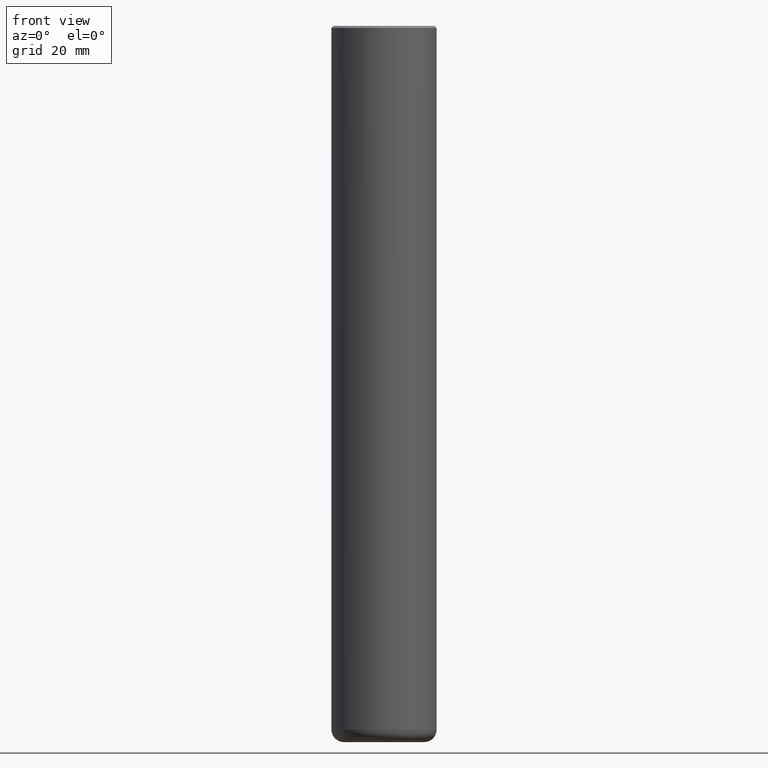
[diagram: clean part render]
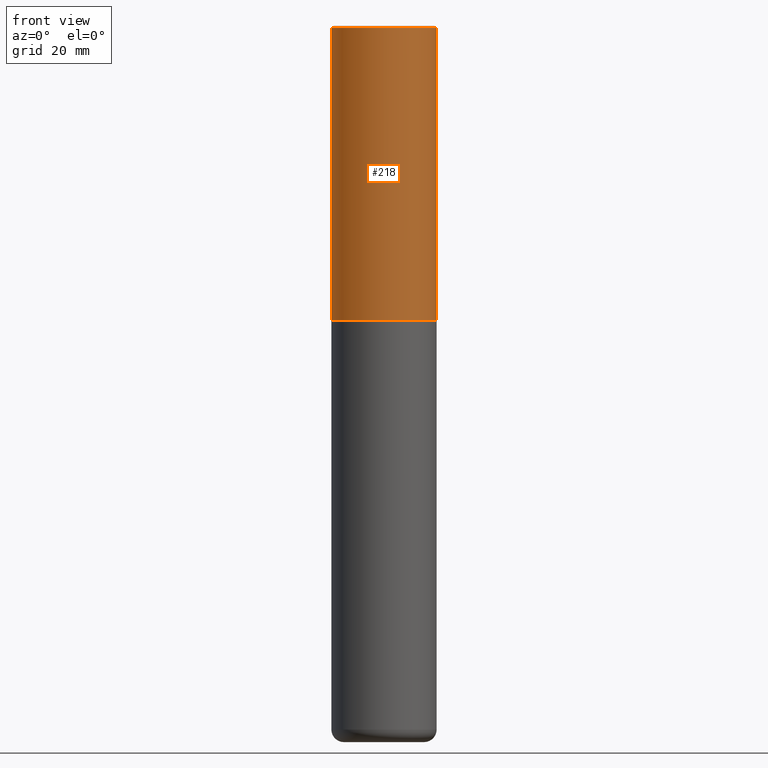
[diagram: same view with one face highlighted and labeled with its STEP entity id]
A machine part, front view. The second image highlights one B-rep face of the part: STEP entity #218.
In plain terms, the highlighted cylindrical surface (partial cylindrical patch) has radius 12.5006 mm, axis along (-0, 0, 1).
Its self-contained STEP definition (entity closure, byte-faithful):
#1 = EDGE_CURVE ( 'NONE', #210, #290, #328, .T. ) ;
#4 = CIRCLE ( 'NONE', #348, 0.4921500000000000319 ) ;
#5 = DIRECTION ( 'NONE',  ( -2.445468806185136877E-29, 3.491481338843145188E-15, 1.000000000000000000 ) ) ;
#36 = CARTESIAN_POINT ( 'NONE',  ( 0.4921500000000003094, -1.305534702220228032E-14, -2.754900000000000126 ) ) ;
#37 = DIRECTION ( 'NONE',  ( -2.445468806185136597E-29, 3.491481338843145583E-15, 1.000000000000000000 ) ) ;
#39 = DIRECTION ( 'NONE',  ( -2.445468806185136877E-29, 3.491481338843145188E-15, 1.000000000000000000 ) ) ;
#40 = CARTESIAN_POINT ( 'NONE',  ( 0.4921500000000000319, -3.446223716380123138E-15, -0.02000000000000010797 ) ) ;
#43 = DIRECTION ( 'NONE',  ( 1.000000000000000000, -6.982962677686265922E-15, 0.000000000000000000 ) ) ;
#49 = CARTESIAN_POINT ( 'NONE',  ( -0.4921500000000000319, 3.366835455046432873E-15, -0.02000000000000010797 ) ) ;
#64 = LINE ( 'NONE', #325, #248 ) ;
#65 = EDGE_CURVE ( 'NONE', #116, #342, #64, .T. ) ;
#116 = VERTEX_POINT ( 'NONE', #36 ) ;
#120 = CARTESIAN_POINT ( 'NONE',  ( -0.4921500000000003094, -1.347319709534586880E-15, -2.754900000000000126 ) ) ;
#146 = CARTESIAN_POINT ( 'NONE',  ( 6.737022014159432629E-29, -9.618681940378981383E-15, -2.754900000000000126 ) ) ;
#158 = AXIS2_PLACEMENT_3D ( 'NONE', #146, #37, #393 ) ;
#181 = ORIENTED_EDGE ( 'NONE', *, *, #1, .F. ) ;
#195 = CARTESIAN_POINT ( 'NONE',  ( -0.4921500000000001984, 3.496936074043334475E-15, -2.420853904668952630E-29 ) ) ;
#210 = VERTEX_POINT ( 'NONE', #120 ) ;
#214 = DIRECTION ( 'NONE',  ( -2.445468806185136597E-29, 3.491481338843145583E-15, 1.000000000000000000 ) ) ;
#216 = FACE_OUTER_BOUND ( 'NONE', #254, .T. ) ;
#218 = ADVANCED_FACE ( 'NONE', ( #216 ), #282, .T. ) ;
#233 = VECTOR ( 'NONE', #39, 39.37007874015748143 ) ;
#246 = DIRECTION ( 'NONE',  ( 1.000000000000000000, -6.982962677686266711E-15, 4.876176775795935232E-29 ) ) ;
#248 = VECTOR ( 'NONE', #5, 39.37007874015748143 ) ;
#254 = EDGE_LOOP ( 'NONE', ( #181, #316, #345, #413 ) ) ;
#270 = CARTESIAN_POINT ( 'NONE',  ( 4.890937612370299433E-31, -6.982962677686328587E-17, -0.02000000000000010797 ) ) ;
#282 = CYLINDRICAL_SURFACE ( 'NONE', #289, 0.4921500000000001984 ) ;
#289 = AXIS2_PLACEMENT_3D ( 'NONE', #368, #214, #246 ) ;
#290 = VERTEX_POINT ( 'NONE', #49 ) ;
#316 = ORIENTED_EDGE ( 'NONE', *, *, #322, .T. ) ;
#319 = CIRCLE ( 'NONE', #158, 0.4921500000000003094 ) ;
#322 = EDGE_CURVE ( 'NONE', #210, #116, #319, .T. ) ;
#325 = CARTESIAN_POINT ( 'NONE',  ( 0.4921500000000001984, -3.436665081823297354E-15, 2.399810400207970443E-29 ) ) ;
#328 = LINE ( 'NONE', #195, #233 ) ;
#342 = VERTEX_POINT ( 'NONE', #40 ) ;
#345 = ORIENTED_EDGE ( 'NONE', *, *, #65, .T. ) ;
#348 = AXIS2_PLACEMENT_3D ( 'NONE', #270, #405, #43 ) ;
#368 = CARTESIAN_POINT ( 'NONE',  ( 0.000000000000000000, 0.000000000000000000, 0.000000000000000000 ) ) ;
#378 = EDGE_CURVE ( 'NONE', #290, #342, #4, .T. ) ;
#393 = DIRECTION ( 'NONE',  ( 1.000000000000000000, -6.982962677686265922E-15, 0.000000000000000000 ) ) ;
#405 = DIRECTION ( 'NONE',  ( -2.445468806185136597E-29, 3.491481338843145583E-15, 1.000000000000000000 ) ) ;
#413 = ORIENTED_EDGE ( 'NONE', *, *, #378, .F. ) ;